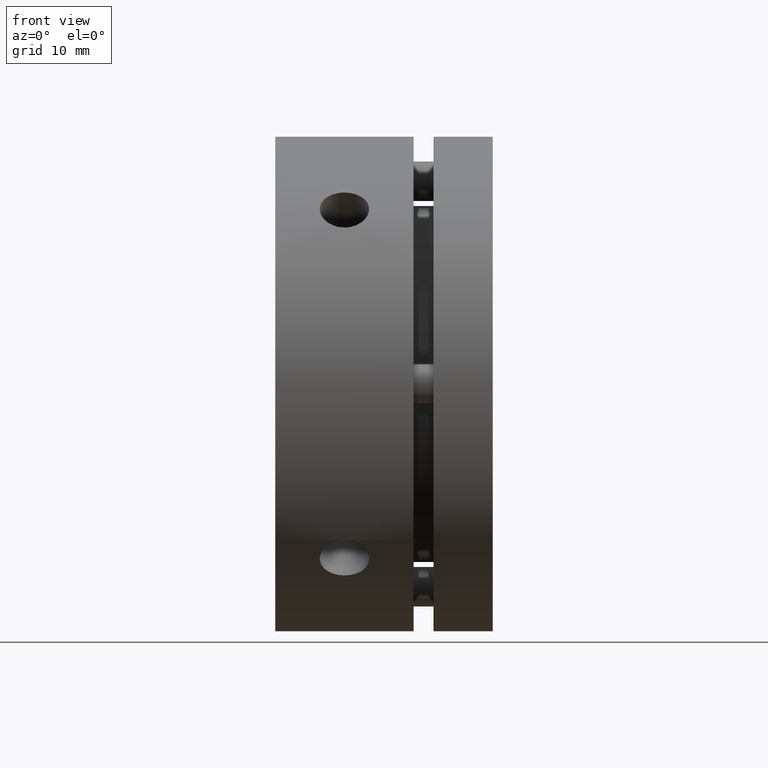
[diagram: clean part render]
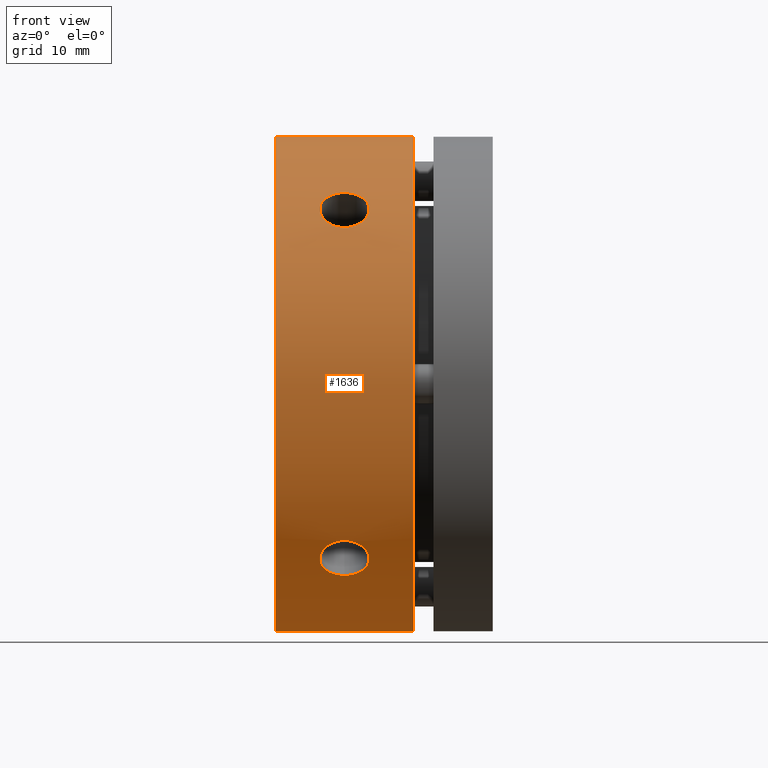
[diagram: same view with one face highlighted and labeled with its STEP entity id]
A machine part, front view. The second image highlights one B-rep face of the part: STEP entity #1636.
In plain terms, the highlighted cylindrical surface (partial cylindrical patch) has radius 25 mm, axis along (1, 0, 0).
Its self-contained STEP definition (entity closure, byte-faithful):
#56 = VECTOR ( 'NONE', #2208, 1000.000000000000000 ) ;
#60 = LINE ( 'NONE', #2210, #56 ) ;
#366 = AXIS2_PLACEMENT_3D ( 'NONE', #2860, #2861, #2862 ) ;
#367 = AXIS2_PLACEMENT_3D ( 'NONE', #2793, #2794, #2795 ) ;
#425 = VERTEX_POINT ( 'NONE', #1462 ) ;
#426 = VERTEX_POINT ( 'NONE', #1463 ) ;
#429 = VERTEX_POINT ( 'NONE', #1466 ) ;
#430 = VERTEX_POINT ( 'NONE', #1467 ) ;
#432 = VERTEX_POINT ( 'NONE', #1469 ) ;
#433 = VERTEX_POINT ( 'NONE', #1470 ) ;
#435 = VERTEX_POINT ( 'NONE', #1472 ) ;
#437 = VERTEX_POINT ( 'NONE', #1474 ) ;
#463 = ORIENTED_EDGE ( 'NONE', *, *, #3423, .T. ) ;
#464 = ORIENTED_EDGE ( 'NONE', *, *, #3466, .T. ) ;
#676 = FACE_OUTER_BOUND ( 'NONE', #963, .T. ) ;
#677 = FACE_BOUND ( 'NONE', #962, .T. ) ;
#680 = FACE_BOUND ( 'NONE', #961, .T. ) ;
#683 = CYLINDRICAL_SURFACE ( 'NONE', #1744, 25.00000000000000000 ) ;
#790 = CIRCLE ( 'NONE', #367, 25.00000000000000000 ) ;
#792 = CIRCLE ( 'NONE', #366, 25.00000000000000000 ) ;
#840 = LINE ( 'NONE', #3103, #850 ) ;
#850 = VECTOR ( 'NONE', #3139, 1000.000000000000000 ) ;
#961 = EDGE_LOOP ( 'NONE', ( #1236, #1232 ) ) ;
#962 = EDGE_LOOP ( 'NONE', ( #464, #463 ) ) ;
#963 = EDGE_LOOP ( 'NONE', ( #1257, #1251, #1247, #1241 ) ) ;
#1092 = EDGE_CURVE ( 'NONE', #435, #433, #60, .T. ) ;
#1232 = ORIENTED_EDGE ( 'NONE', *, *, #3422, .T. ) ;
#1236 = ORIENTED_EDGE ( 'NONE', *, *, #3469, .T. ) ;
#1241 = ORIENTED_EDGE ( 'NONE', *, *, #3424, .T. ) ;
#1247 = ORIENTED_EDGE ( 'NONE', *, *, #3471, .T. ) ;
#1251 = ORIENTED_EDGE ( 'NONE', *, *, #3421, .T. ) ;
#1257 = ORIENTED_EDGE ( 'NONE', *, *, #1092, .F. ) ;
#1462 = CARTESIAN_POINT ( 'NONE',  ( 6.999999999999992900, -19.35682605230423200, -15.82129214637149600 ) ) ;
#1463 = CARTESIAN_POINT ( 'NONE',  ( 6.999999999999992900, -15.82129214637149200, -19.35682605230423200 ) ) ;
#1466 = CARTESIAN_POINT ( 'NONE',  ( 6.999999999999992900, -15.82129214637149600, 19.35682605230423200 ) ) ;
#1467 = CARTESIAN_POINT ( 'NONE',  ( 6.999999999999992900, -19.35682605230423200, 15.82129214637149200 ) ) ;
#1469 = CARTESIAN_POINT ( 'NONE',  ( 14.00000000000000000, 0.0000000000000000000, -25.00000000000000000 ) ) ;
#1470 = CARTESIAN_POINT ( 'NONE',  ( 14.00000000000000000, 3.061616997868383000E-015, 25.00000000000000000 ) ) ;
#1472 = CARTESIAN_POINT ( 'NONE',  ( -8.673617379884035500E-015, 3.061616997868383000E-015, 25.00000000000000000 ) ) ;
#1474 = CARTESIAN_POINT ( 'NONE',  ( -8.673617379884035500E-015, 0.0000000000000000000, -25.00000000000000000 ) ) ;
#1636 = ADVANCED_FACE ( 'NONE', ( #676, #680, #677 ), #683, .T. ) ;
#1744 = AXIS2_PLACEMENT_3D ( 'NONE', #2522, #2523, #2521 ) ;
#2208 = DIRECTION ( 'NONE',  ( 1.000000000000000000, 0.0000000000000000000, 0.0000000000000000000 ) ) ;
#2210 = CARTESIAN_POINT ( 'NONE',  ( 10.99999999999999300, 3.061616997868383000E-015, 25.00000000000000000 ) ) ;
#2521 = DIRECTION ( 'NONE',  ( 0.0000000000000000000, 0.0000000000000000000, -1.000000000000000000 ) ) ;
#2522 = CARTESIAN_POINT ( 'NONE',  ( 10.99999999999999300, 0.0000000000000000000, 0.0000000000000000000 ) ) ;
#2523 = DIRECTION ( 'NONE',  ( 1.000000000000000000, 0.0000000000000000000, 0.0000000000000000000 ) ) ;
#2781 = CARTESIAN_POINT ( 'NONE',  ( 6.999999999999992900, -15.82129214637149600, 19.35682605230423200 ) ) ;
#2787 = CARTESIAN_POINT ( 'NONE',  ( 7.163139563607114900, -19.35682605230423500, -15.82129214637149900 ) ) ;
#2791 = CARTESIAN_POINT ( 'NONE',  ( 7.163139563607116700, -15.82129214637149600, 19.35682605230423200 ) ) ;
#2792 = CARTESIAN_POINT ( 'NONE',  ( 6.999999999999992900, -19.35682605230423200, -15.82129214637149600 ) ) ;
#2793 = CARTESIAN_POINT ( 'NONE',  ( -8.673617379884035500E-015, 0.0000000000000000000, 0.0000000000000000000 ) ) ;
#2794 = DIRECTION ( 'NONE',  ( 1.000000000000000000, 0.0000000000000000000, 0.0000000000000000000 ) ) ;
#2795 = DIRECTION ( 'NONE',  ( 0.0000000000000000000, 0.0000000000000000000, -1.000000000000000000 ) ) ;
#2796 = CARTESIAN_POINT ( 'NONE',  ( 7.328853584822575800, -15.83401653310429000, 19.34644549979849900 ) ) ;
#2797 = CARTESIAN_POINT ( 'NONE',  ( 7.649479166834988000, -15.88370931819236500, 19.30566785538543700 ) ) ;
#2798 = CARTESIAN_POINT ( 'NONE',  ( 7.805327144855926500, -15.92040865604822700, 19.27549098189052000 ) ) ;
#2799 = CARTESIAN_POINT ( 'NONE',  ( 8.108048049782837600, -16.01729785154998700, 19.19505493358249700 ) ) ;
#2800 = CARTESIAN_POINT ( 'NONE',  ( 8.254251655219759300, -16.07762663785109700, 19.14466422154777100 ) ) ;
#2801 = CARTESIAN_POINT ( 'NONE',  ( 8.524936041967668700, -16.21628274703376200, 19.02735978348562200 ) ) ;
#2802 = CARTESIAN_POINT ( 'NONE',  ( 8.651141497275169500, -16.29510102697398800, 18.96004667506204900 ) ) ;
#2803 = CARTESIAN_POINT ( 'NONE',  ( 8.884524699013402600, -16.47183910033850300, 18.80670635843447200 ) ) ;
#2804 = CARTESIAN_POINT ( 'NONE',  ( 8.987832015764402300, -16.56681997828795300, 18.72321677597504300 ) ) ;
#2805 = CARTESIAN_POINT ( 'NONE',  ( 9.168782965460135200, -16.76885719327069800, 18.54248632370663700 ) ) ;
#2806 = CARTESIAN_POINT ( 'NONE',  ( 9.247054217491209400, -16.87717350695864100, 18.44407663537161200 ) ) ;
#2807 = CARTESIAN_POINT ( 'NONE',  ( 9.372440769910017600, -17.09944998789081800, 18.23819504849830500 ) ) ;
#2808 = CARTESIAN_POINT ( 'NONE',  ( 9.419710926216760400, -17.21288316165702900, 18.13125322926073200 ) ) ;
#2809 = CARTESIAN_POINT ( 'NONE',  ( 9.483654367787716300, -17.44394805357263000, 17.90905823053501300 ) ) ;
#2810 = CARTESIAN_POINT ( 'NONE',  ( 9.500118321870228800, -17.56211201030883000, 17.79324378225360800 ) ) ;
#2811 = CARTESIAN_POINT ( 'NONE',  ( 9.499880382113195400, -17.79577255788594000, 17.55954958492198200 ) ) ;
#2812 = CARTESIAN_POINT ( 'NONE',  ( 9.483543132868073000, -17.90947926481311100, 17.44351153811624000 ) ) ;
#2813 = CARTESIAN_POINT ( 'NONE',  ( 9.419764758697388300, -18.13103162978644900, 17.21311227979554200 ) ) ;
#2814 = CARTESIAN_POINT ( 'NONE',  ( 9.371539835325204800, -18.24000394341517500, 17.09751959218233700 ) ) ;
#2815 = CARTESIAN_POINT ( 'NONE',  ( 9.245839992705658300, -18.44573517878625800, 16.87535995986300100 ) ) ;
#2816 = CARTESIAN_POINT ( 'NONE',  ( 9.168960565631618200, -18.54232935799301200, 16.76903436161011400 ) ) ;
#2817 = CARTESIAN_POINT ( 'NONE',  ( 8.987376384002795100, -18.72365140319461900, 16.56633241163528700 ) ) ;
#2818 = CARTESIAN_POINT ( 'NONE',  ( 8.881781420232862000, -18.80862879278942400, 16.46963285588223900 ) ) ;
#2819 = CARTESIAN_POINT ( 'NONE',  ( 8.651168739240215900, -18.95990734242125300, 16.29525197839248600 ) ) ;
#2820 = CARTESIAN_POINT ( 'NONE',  ( 8.525326583130524900, -19.02724986034173000, 16.21641623889665600 ) ) ;
#2821 = CARTESIAN_POINT ( 'NONE',  ( 8.251983125276744600, -19.14558758539087800, 16.07653161882723900 ) ) ;
#2822 = CARTESIAN_POINT ( 'NONE',  ( 8.106617683448966700, -19.19545863622738900, 16.01681234672592400 ) ) ;
#2823 = CARTESIAN_POINT ( 'NONE',  ( 7.805804194438099600, -19.27534051024168000, 15.92058912916179700 ) ) ;
#2824 = CARTESIAN_POINT ( 'NONE',  ( 7.648127992457477700, -19.30594409526962000, 15.88337365197722800 ) ) ;
#2825 = CARTESIAN_POINT ( 'NONE',  ( 7.325401462449725900, -19.34677858484068100, 15.83360964427095400 ) ) ;
#2826 = CARTESIAN_POINT ( 'NONE',  ( 7.163139281254923500, -19.35682605230422500, 15.82129214637148900 ) ) ;
#2827 = CARTESIAN_POINT ( 'NONE',  ( 6.999999999999992900, -19.35682605230423200, 15.82129214637149200 ) ) ;
#2828 = CARTESIAN_POINT ( 'NONE',  ( 7.328853584822577500, -19.34644549979849900, -15.83401653310429000 ) ) ;
#2829 = CARTESIAN_POINT ( 'NONE',  ( 7.649479166834983500, -19.30566785538544000, -15.88370931819236100 ) ) ;
#2830 = CARTESIAN_POINT ( 'NONE',  ( 7.805327144855930000, -19.27549098189052400, -15.92040865604823100 ) ) ;
#2831 = CARTESIAN_POINT ( 'NONE',  ( 8.108048049782842900, -19.19505493358249700, -16.01729785154999400 ) ) ;
#2832 = CARTESIAN_POINT ( 'NONE',  ( 8.254251655219759300, -19.14466422154777400, -16.07762663785109300 ) ) ;
#2833 = CARTESIAN_POINT ( 'NONE',  ( 8.524936041967659900, -19.02735978348562500, -16.21628274703375900 ) ) ;
#2834 = CARTESIAN_POINT ( 'NONE',  ( 8.651141497275167700, -18.96004667506203800, -16.29510102697398500 ) ) ;
#2835 = CARTESIAN_POINT ( 'NONE',  ( 8.884524699013400800, -18.80670635843447900, -16.47183910033850300 ) ) ;
#2836 = CARTESIAN_POINT ( 'NONE',  ( 8.987832015764398700, -18.72321677597503600, -16.56681997828794900 ) ) ;
#2837 = CARTESIAN_POINT ( 'NONE',  ( 9.168782965460129800, -18.54248632370663300, -16.76885719327069400 ) ) ;
#2838 = CARTESIAN_POINT ( 'NONE',  ( 9.247054217491204000, -18.44407663537160500, -16.87717350695862700 ) ) ;
#2839 = CARTESIAN_POINT ( 'NONE',  ( 9.372440769910017600, -18.23819504849831200, -17.09944998789081100 ) ) ;
#2840 = CARTESIAN_POINT ( 'NONE',  ( 9.419710926216753300, -18.13125322926073200, -17.21288316165702200 ) ) ;
#2841 = CARTESIAN_POINT ( 'NONE',  ( 9.483654367787716300, -17.90905823053501300, -17.44394805357262600 ) ) ;
#2842 = CARTESIAN_POINT ( 'NONE',  ( 9.500118321870228800, -17.79324378225361500, -17.56211201030882000 ) ) ;
#2843 = CARTESIAN_POINT ( 'NONE',  ( 9.499880382113195400, -17.55954958492198900, -17.79577255788594300 ) ) ;
#2844 = CARTESIAN_POINT ( 'NONE',  ( 9.483543132868076600, -17.44351153811624000, -17.90947926481310400 ) ) ;
#2845 = CARTESIAN_POINT ( 'NONE',  ( 9.419764758697393600, -17.21311227979555300, -18.13103162978645600 ) ) ;
#2846 = CARTESIAN_POINT ( 'NONE',  ( 9.371539835325213700, -17.09751959218235500, -18.24000394341517200 ) ) ;
#2847 = CARTESIAN_POINT ( 'NONE',  ( 9.245839992705660000, -16.87535995986301200, -18.44573517878624700 ) ) ;
#2848 = CARTESIAN_POINT ( 'NONE',  ( 9.168960565631623500, -16.76903436161012100, -18.54232935799301200 ) ) ;
#2849 = CARTESIAN_POINT ( 'NONE',  ( 8.987376384002798700, -16.56633241163528700, -18.72365140319462600 ) ) ;
#2850 = CARTESIAN_POINT ( 'NONE',  ( 8.881781420232865500, -16.46963285588224600, -18.80862879278943500 ) ) ;
#2851 = CARTESIAN_POINT ( 'NONE',  ( 8.651168739240217700, -16.29525197839248200, -18.95990734242125000 ) ) ;
#2852 = CARTESIAN_POINT ( 'NONE',  ( 8.525326583130530300, -16.21641623889666000, -19.02724986034173300 ) ) ;
#2853 = CARTESIAN_POINT ( 'NONE',  ( 8.251983125276748200, -16.07653161882723600, -19.14558758539088100 ) ) ;
#2854 = CARTESIAN_POINT ( 'NONE',  ( 8.106617683448968500, -16.01681234672592800, -19.19545863622739600 ) ) ;
#2855 = CARTESIAN_POINT ( 'NONE',  ( 7.805804194438096900, -15.92058912916179700, -19.27534051024167300 ) ) ;
#2856 = CARTESIAN_POINT ( 'NONE',  ( 7.648127992457483000, -15.88337365197723200, -19.30594409526962700 ) ) ;
#2857 = CARTESIAN_POINT ( 'NONE',  ( 7.325401462449727700, -15.83360964427096100, -19.34677858484068800 ) ) ;
#2858 = CARTESIAN_POINT ( 'NONE',  ( 7.163139281254931500, -15.82129214637149200, -19.35682605230423500 ) ) ;
#2859 = CARTESIAN_POINT ( 'NONE',  ( 6.999999999999992900, -15.82129214637149200, -19.35682605230423200 ) ) ;
#2860 = CARTESIAN_POINT ( 'NONE',  ( 14.00000000000000000, 0.0000000000000000000, 0.0000000000000000000 ) ) ;
#2861 = DIRECTION ( 'NONE',  ( -1.000000000000000000, -0.0000000000000000000, -0.0000000000000000000 ) ) ;
#2862 = DIRECTION ( 'NONE',  ( 0.0000000000000000000, 0.0000000000000000000, -1.000000000000000000 ) ) ;
#3027 = B_SPLINE_CURVE_WITH_KNOTS ( 'NONE', 3,
 ( #2781, #2791, #2796, #2797, #2798, #2799, #2800, #2801, #2802, #2803, #2804, #2805, #2806, #2807, #2808, #2809, #2810, #2811, #2812, #2813, #2814, #2815, #2816, #2817, #2818, #2819, #2820, #2821, #2822, #2823, #2824, #2825, #2826, #2827 ),
 .UNSPECIFIED., .F., .F.,
 ( 4, 2, 2, 2, 2, 2, 2, 2, 2, 2, 2, 2, 2, 2, 2, 2, 4 ),
 ( 0.003911418372935531300, 0.004400124704540184900, 0.004888831036144838600, 0.005377537367749489700, 0.005866243699354140700, 0.006354950030958792700, 0.006843656362563442900, 0.007332362694168094800, 0.007821069025772745000, 0.008309775357377396900, 0.008798481688982047100, 0.009287188020586697300, 0.009775894352191349300, 0.01026460068379599900, 0.01075330701540065100, 0.01124201334700530200, 0.01173071967860995200 ),
 .UNSPECIFIED. ) ;
#3028 = B_SPLINE_CURVE_WITH_KNOTS ( 'NONE', 3,
 ( #2792, #2787, #2828, #2829, #2830, #2831, #2832, #2833, #2834, #2835, #2836, #2837, #2838, #2839, #2840, #2841, #2842, #2843, #2844, #2845, #2846, #2847, #2848, #2849, #2850, #2851, #2852, #2853, #2854, #2855, #2856, #2857, #2858, #2859 ),
 .UNSPECIFIED., .F., .F.,
 ( 4, 2, 2, 2, 2, 2, 2, 2, 2, 2, 2, 2, 2, 2, 2, 2, 4 ),
 ( 0.003911418372935530400, 0.004400124704540176200, 0.004888831036144823000, 0.005377537367749473200, 0.005866243699354124200, 0.006354950030958775300, 0.006843656362563425500, 0.007332362694168076600, 0.007821069025772727600, 0.008309775357377377800, 0.008798481688982028000, 0.009287188020586680000, 0.009775894352191331900, 0.01026460068379598400, 0.01075330701540063400, 0.01124201334700528600, 0.01173071967860993600 ),
 .UNSPECIFIED. ) ;
#3031 = B_SPLINE_CURVE_WITH_KNOTS ( 'NONE', 3,
 ( #3098, #3099, #3104, #3105, #3106, #3107, #3108, #3109, #3110, #3111, #3112, #3113, #3114, #3115, #3116, #3117, #3118, #3119, #3120, #3121, #3122, #3123, #3124, #3125, #3126, #3127, #3128, #3129, #3130, #3131, #3132, #3133, #3134, #3135 ),
 .UNSPECIFIED., .F., .F.,
 ( 4, 2, 2, 2, 2, 2, 2, 2, 2, 2, 2, 2, 2, 2, 2, 2, 4 ),
 ( 0.01173071967860995200, 0.01221942600983143800, 0.01270813234105292200, 0.01319683867227440900, 0.01368554500349589300, 0.01417425133471737900, 0.01466295766593886400, 0.01515166399716035000, 0.01564037032838183600, 0.01612907665960332200, 0.01661778299082480500, 0.01710648932204629100, 0.01759519565326777800, 0.01808390198448926400, 0.01857260831571074700, 0.01906131464693223300, 0.01955002097815371900 ),
 .UNSPECIFIED. ) ;
#3033 = B_SPLINE_CURVE_WITH_KNOTS ( 'NONE', 3,
 ( #3063, #3061, #3064, #3065, #3066, #3067, #3068, #3069, #3070, #3071, #3072, #3073, #3074, #3075, #3076, #3077, #3078, #3079, #3080, #3081, #3082, #3083, #3084, #3085, #3086, #3087, #3088, #3089, #3090, #3091, #3092, #3093, #3094, #3095 ),
 .UNSPECIFIED., .F., .F.,
 ( 4, 2, 2, 2, 2, 2, 2, 2, 2, 2, 2, 2, 2, 2, 2, 2, 4 ),
 ( 0.01173071967860993600, 0.01221942600983142100, 0.01270813234105290500, 0.01319683867227439000, 0.01368554500349587400, 0.01417425133471735900, 0.01466295766593884300, 0.01515166399716032800, 0.01564037032838181200, 0.01612907665960329500, 0.01661778299082478100, 0.01710648932204626700, 0.01759519565326775000, 0.01808390198448923300, 0.01857260831571071900, 0.01906131464693220500, 0.01955002097815368800 ),
 .UNSPECIFIED. ) ;
#3061 = CARTESIAN_POINT ( 'NONE',  ( 6.836860718872966200, -15.82129214637149600, -19.35682605230422800 ) ) ;
#3063 = CARTESIAN_POINT ( 'NONE',  ( 6.999999999999992900, -15.82129214637149200, -19.35682605230423200 ) ) ;
#3064 = CARTESIAN_POINT ( 'NONE',  ( 6.671146985958582600, -15.83401648847052800, -19.34644553614706600 ) ) ;
#3065 = CARTESIAN_POINT ( 'NONE',  ( 6.350521927896729800, -15.88370910469356200, -19.30566803085912800 ) ) ;
#3066 = CARTESIAN_POINT ( 'NONE',  ( 6.194674196945250300, -15.92040831870985700, -19.27549125980290900 ) ) ;
#3067 = CARTESIAN_POINT ( 'NONE',  ( 5.891953753427640300, -16.01729718229332600, -19.19505549133116100 ) ) ;
#3068 = CARTESIAN_POINT ( 'NONE',  ( 5.745750315483021200, -16.07762577699812600, -19.14466494310464000 ) ) ;
#3069 = CARTESIAN_POINT ( 'NONE',  ( 5.475066205600013400, -16.21628144711066700, -19.02736088996655200 ) ) ;
#3070 = CARTESIAN_POINT ( 'NONE',  ( 5.348860912580753400, -16.29509943638048200, -18.96004804002123500 ) ) ;
#3071 = CARTESIAN_POINT ( 'NONE',  ( 5.115477740438355300, -16.47183701861901300, -18.80670817962285900 ) ) ;
#3072 = CARTESIAN_POINT ( 'NONE',  ( 5.012170401896495900, -16.56681763514522700, -18.72321884640329200 ) ) ;
#3073 = CARTESIAN_POINT ( 'NONE',  ( 4.831219316698875100, -16.76885428893139400, -18.54248894736242200 ) ) ;
#3074 = CARTESIAN_POINT ( 'NONE',  ( 4.752947951516252300, -16.87717028382580900, -18.44407958177200200 ) ) ;
#3075 = CARTESIAN_POINT ( 'NONE',  ( 4.627560969069779000, -17.09944628323742000, -18.23819851889624700 ) ) ;
#3076 = CARTESIAN_POINT ( 'NONE',  ( 4.580290555429843200, -17.21287921232601500, -18.13125697514845700 ) ) ;
#3077 = CARTESIAN_POINT ( 'NONE',  ( 4.516346475691158000, -17.44394360092222100, -17.90906256409975900 ) ) ;
#3078 = CARTESIAN_POINT ( 'NONE',  ( 4.499882126369475300, -17.56210687049617600, -17.79324885867565000 ) ) ;
#3079 = CARTESIAN_POINT ( 'NONE',  ( 4.500119159786869700, -17.79576799633857900, -17.55955421125440800 ) ) ;
#3080 = CARTESIAN_POINT ( 'NONE',  ( 4.516456033872751500, -17.90947497733024100, -17.44351594325318200 ) ) ;
#3081 = CARTESIAN_POINT ( 'NONE',  ( 4.580233757562066200, -18.13102786845972500, -17.21311624486636700 ) ) ;
#3082 = CARTESIAN_POINT ( 'NONE',  ( 4.628458392928667600, -18.24000043098504500, -17.09752334307547600 ) ) ;
#3083 = CARTESIAN_POINT ( 'NONE',  ( 4.754157864849111600, -18.44573228489319000, -16.87536312686025800 ) ) ;
#3084 = CARTESIAN_POINT ( 'NONE',  ( 4.831037164329486300, -18.54232674500103400, -16.76903725391397900 ) ) ;
#3085 = CARTESIAN_POINT ( 'NONE',  ( 5.012621174044348900, -18.72364931098817200, -16.56633477932483300 ) ) ;
#3086 = CARTESIAN_POINT ( 'NONE',  ( 5.118216133836535100, -18.80862697575487600, -16.46963493351963200 ) ) ;
#3087 = CARTESIAN_POINT ( 'NONE',  ( 5.348828919287428500, -18.95990601898501600, -16.29525352081888600 ) ) ;
#3088 = CARTESIAN_POINT ( 'NONE',  ( 5.474671166017492000, -19.02724875105169400, -16.21641754207272600 ) ) ;
#3089 = CARTESIAN_POINT ( 'NONE',  ( 5.748014869720031500, -19.14558685220480100, -16.07653249360462100 ) ) ;
#3090 = CARTESIAN_POINT ( 'NONE',  ( 5.893380537485498400, -19.19545808625265000, -16.01681300666681600 ) ) ;
#3091 = CARTESIAN_POINT ( 'NONE',  ( 6.194194462257707200, -19.27534023106149500, -15.92058946799507500 ) ) ;
#3092 = CARTESIAN_POINT ( 'NONE',  ( 6.351870894075363000, -19.30594391771895200, -15.88337386801491200 ) ) ;
#3093 = CARTESIAN_POINT ( 'NONE',  ( 6.674597976106359600, -19.34677855046517800, -15.83360968650258500 ) ) ;
#3094 = CARTESIAN_POINT ( 'NONE',  ( 6.836860436520781000, -19.35682605230422800, -15.82129214637150300 ) ) ;
#3095 = CARTESIAN_POINT ( 'NONE',  ( 6.999999999999992900, -19.35682605230423200, -15.82129214637149600 ) ) ;
#3098 = CARTESIAN_POINT ( 'NONE',  ( 6.999999999999992900, -19.35682605230423200, 15.82129214637149200 ) ) ;
#3099 = CARTESIAN_POINT ( 'NONE',  ( 6.836860718872963500, -19.35682605230422800, 15.82129214637149600 ) ) ;
#3103 = CARTESIAN_POINT ( 'NONE',  ( 10.99999999999999300, 0.0000000000000000000, -25.00000000000000000 ) ) ;
#3104 = CARTESIAN_POINT ( 'NONE',  ( 6.671146985958581700, -19.34644553614706600, 15.83401648847052800 ) ) ;
#3105 = CARTESIAN_POINT ( 'NONE',  ( 6.350521927896729800, -19.30566803085912800, 15.88370910469356200 ) ) ;
#3106 = CARTESIAN_POINT ( 'NONE',  ( 6.194674196945248600, -19.27549125980290500, 15.92040831870985700 ) ) ;
#3107 = CARTESIAN_POINT ( 'NONE',  ( 5.891953753427637600, -19.19505549133115700, 16.01729718229332600 ) ) ;
#3108 = CARTESIAN_POINT ( 'NONE',  ( 5.745750315483021200, -19.14466494310464000, 16.07762577699812600 ) ) ;
#3109 = CARTESIAN_POINT ( 'NONE',  ( 5.475066205600013400, -19.02736088996655200, 16.21628144711066700 ) ) ;
#3110 = CARTESIAN_POINT ( 'NONE',  ( 5.348860912580757800, -18.96004804002123500, 16.29509943638048200 ) ) ;
#3111 = CARTESIAN_POINT ( 'NONE',  ( 5.115477740438357100, -18.80670817962285900, 16.47183701861901300 ) ) ;
#3112 = CARTESIAN_POINT ( 'NONE',  ( 5.012170401896495900, -18.72321884640329200, 16.56681763514522700 ) ) ;
#3113 = CARTESIAN_POINT ( 'NONE',  ( 4.831219316698875900, -18.54248894736241800, 16.76885428893139000 ) ) ;
#3114 = CARTESIAN_POINT ( 'NONE',  ( 4.752947951516254000, -18.44407958177199800, 16.87717028382580500 ) ) ;
#3115 = CARTESIAN_POINT ( 'NONE',  ( 4.627560969069779900, -18.23819851889625500, 17.09944628323742000 ) ) ;
#3116 = CARTESIAN_POINT ( 'NONE',  ( 4.580290555429843200, -18.13125697514846700, 17.21287921232601900 ) ) ;
#3117 = CARTESIAN_POINT ( 'NONE',  ( 4.516346475691158000, -17.90906256409975900, 17.44394360092222100 ) ) ;
#3118 = CARTESIAN_POINT ( 'NONE',  ( 4.499882126369475300, -17.79324885867565000, 17.56210687049617600 ) ) ;
#3119 = CARTESIAN_POINT ( 'NONE',  ( 4.500119159786869700, -17.55955421125440800, 17.79576799633857900 ) ) ;
#3120 = CARTESIAN_POINT ( 'NONE',  ( 4.516456033872751500, -17.44351594325318200, 17.90947497733024100 ) ) ;
#3121 = CARTESIAN_POINT ( 'NONE',  ( 4.580233757562066200, -17.21311624486636700, 18.13102786845972500 ) ) ;
#3122 = CARTESIAN_POINT ( 'NONE',  ( 4.628458392928667600, -17.09752334307547600, 18.24000043098504500 ) ) ;
#3123 = CARTESIAN_POINT ( 'NONE',  ( 4.754157864849111600, -16.87536312686025800, 18.44573228489319000 ) ) ;
#3124 = CARTESIAN_POINT ( 'NONE',  ( 4.831037164329486300, -16.76903725391397900, 18.54232674500103400 ) ) ;
#3125 = CARTESIAN_POINT ( 'NONE',  ( 5.012621174044348900, -16.56633477932483300, 18.72364931098817200 ) ) ;
#3126 = CARTESIAN_POINT ( 'NONE',  ( 5.118216133836535100, -16.46963493351963200, 18.80862697575487600 ) ) ;
#3127 = CARTESIAN_POINT ( 'NONE',  ( 5.348828919287428500, -16.29525352081888600, 18.95990601898501600 ) ) ;
#3128 = CARTESIAN_POINT ( 'NONE',  ( 5.474671166017492900, -16.21641754207272600, 19.02724875105169400 ) ) ;
#3129 = CARTESIAN_POINT ( 'NONE',  ( 5.748014869720034200, -16.07653249360462100, 19.14558685220479700 ) ) ;
#3130 = CARTESIAN_POINT ( 'NONE',  ( 5.893380537485501100, -16.01681300666681600, 19.19545808625264600 ) ) ;
#3131 = CARTESIAN_POINT ( 'NONE',  ( 6.194194462257712500, -15.92058946799507500, 19.27534023106149500 ) ) ;
#3132 = CARTESIAN_POINT ( 'NONE',  ( 6.351870894075363000, -15.88337386801491200, 19.30594391771895200 ) ) ;
#3133 = CARTESIAN_POINT ( 'NONE',  ( 6.674597976106359600, -15.83360968650258500, 19.34677855046517800 ) ) ;
#3134 = CARTESIAN_POINT ( 'NONE',  ( 6.836860436520781000, -15.82129214637149200, 19.35682605230422800 ) ) ;
#3135 = CARTESIAN_POINT ( 'NONE',  ( 6.999999999999992900, -15.82129214637149600, 19.35682605230423200 ) ) ;
#3139 = DIRECTION ( 'NONE',  ( 1.000000000000000000, 0.0000000000000000000, 0.0000000000000000000 ) ) ;
#3421 = EDGE_CURVE ( 'NONE', #435, #437, #790, .T. ) ;
#3422 = EDGE_CURVE ( 'NONE', #429, #430, #3027, .T. ) ;
#3423 = EDGE_CURVE ( 'NONE', #425, #426, #3028, .T. ) ;
#3424 = EDGE_CURVE ( 'NONE', #432, #433, #792, .T. ) ;
#3466 = EDGE_CURVE ( 'NONE', #426, #425, #3033, .T. ) ;
#3469 = EDGE_CURVE ( 'NONE', #430, #429, #3031, .T. ) ;
#3471 = EDGE_CURVE ( 'NONE', #437, #432, #840, .T. ) ;